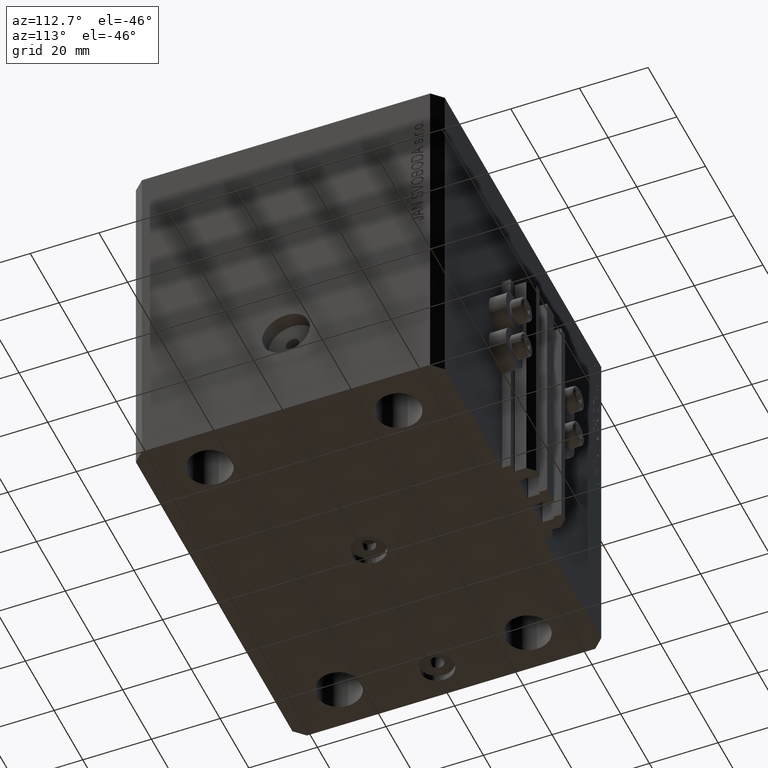
[diagram: clean part render]
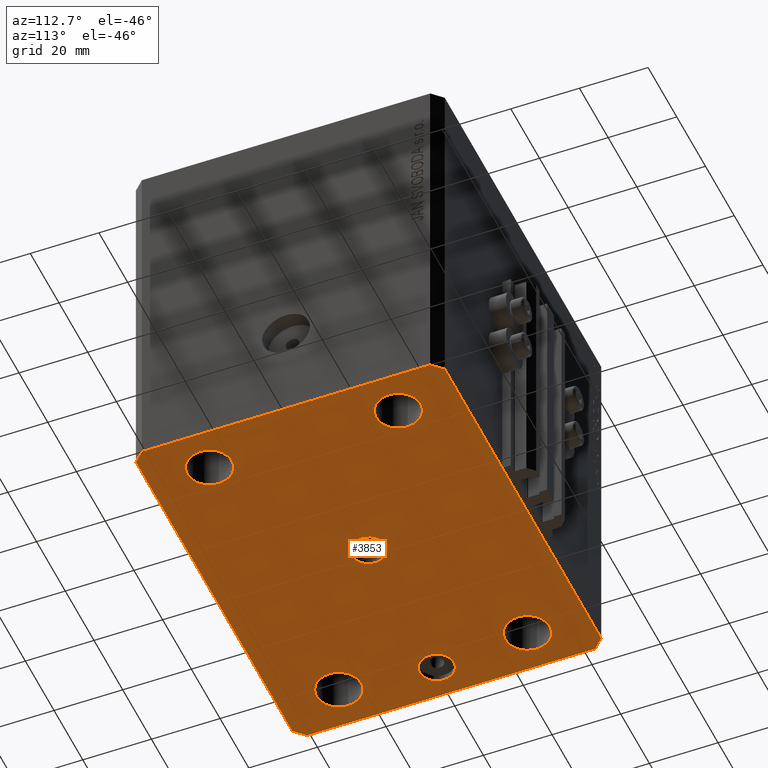
[diagram: same view with one face highlighted and labeled with its STEP entity id]
A machine part, auxiliary view. The second image highlights one B-rep face of the part: STEP entity #3853.
In plain terms, the highlighted planar face has unit normal (0, 0, 1).
Its self-contained STEP definition (entity closure, byte-faithful):
#52 = EDGE_CURVE ( 'NONE', #39049, #38911, #45663, .T. ) ;
#116 = CARTESIAN_POINT ( 'NONE',  ( -51.49999999999998579, -27.50000000000000355, -105.0000000000000000 ) ) ;
#283 = DIRECTION ( 'NONE',  ( -0.000000000000000000, -0.000000000000000000, -1.000000000000000000 ) ) ;
#383 = CARTESIAN_POINT ( 'NONE',  ( 38.50000000000000000, 27.49999999999999289, -105.0000000000000000 ) ) ;
#556 = AXIS2_PLACEMENT_3D ( 'NONE', #14667, #14897, #4152 ) ;
#993 = CARTESIAN_POINT ( 'NONE',  ( 44.99999999999998579, -27.50000000000000355, -105.0000000000000000 ) ) ;
#1139 = EDGE_LOOP ( 'NONE', ( #31312, #21358 ) ) ;
#1327 = CARTESIAN_POINT ( 'NONE',  ( 54.50000000000059686, 45.00000000000002842, -105.0000000000000000 ) ) ;
#1668 = ORIENTED_EDGE ( 'NONE', *, *, #37815, .F. ) ;
#2010 = CIRCLE ( 'NONE', #30298, 5.000000000000000000 ) ;
#2219 = DIRECTION ( 'NONE',  ( -0.000000000000000000, -0.000000000000000000, -1.000000000000000000 ) ) ;
#2945 = CARTESIAN_POINT ( 'NONE',  ( 51.49999999999998579, -27.50000000000000355, -105.0000000000000000 ) ) ;
#3059 = DIRECTION ( 'NONE',  ( 1.000000000000000000, 0.000000000000000000, -0.000000000000000000 ) ) ;
#3290 = FACE_BOUND ( 'NONE', #27787, .T. ) ;
#3508 = VERTEX_POINT ( 'NONE', #33984 ) ;
#3555 = DIRECTION ( 'NONE',  ( -0.7071067811865483499, -0.7071067811865466846, 0.000000000000000000 ) ) ;
#3853 = ADVANCED_FACE ( 'NONE', ( #27725, #38942, #10454, #17866, #46620, #3290, #17398 ), #6161, .F. ) ;
#4152 = DIRECTION ( 'NONE',  ( -1.000000000000000000, 0.000000000000000000, 0.000000000000000000 ) ) ;
#5781 = EDGE_LOOP ( 'NONE', ( #45998, #27158 ) ) ;
#6027 = CARTESIAN_POINT ( 'NONE',  ( -38.50000000000000000, 27.49999999999999645, -105.0000000000000000 ) ) ;
#6089 = CARTESIAN_POINT ( 'NONE',  ( 57.50000000000055422, 41.99999999999997868, -105.0000000000000000 ) ) ;
#6161 = PLANE ( 'NONE',  #17486 ) ;
#6390 = DIRECTION ( 'NONE',  ( 1.000000000000000000, 0.000000000000000000, 0.000000000000000000 ) ) ;
#6597 = ORIENTED_EDGE ( 'NONE', *, *, #23996, .F. ) ;
#6711 = CARTESIAN_POINT ( 'NONE',  ( 0.000000000000000000, 0.000000000000000000, -105.0000000000000000 ) ) ;
#7148 = VERTEX_POINT ( 'NONE', #12737 ) ;
#7308 = VECTOR ( 'NONE', #11576, 1000.000000000000000 ) ;
#7412 = VERTEX_POINT ( 'NONE', #38486 ) ;
#7565 = LINE ( 'NONE', #1327, #43666 ) ;
#7820 = VERTEX_POINT ( 'NONE', #23132 ) ;
#8344 = ORIENTED_EDGE ( 'NONE', *, *, #8880, .F. ) ;
#8439 = DIRECTION ( 'NONE',  ( 0.7071067811865491270, -0.7071067811865459074, 0.000000000000000000 ) ) ;
#8880 = EDGE_CURVE ( 'NONE', #17401, #27056, #32156, .T. ) ;
#8976 = VERTEX_POINT ( 'NONE', #2945 ) ;
#9095 = DIRECTION ( 'NONE',  ( -2.478176394252581141E-16, -1.000000000000000000, 0.000000000000000000 ) ) ;
#9149 = ORIENTED_EDGE ( 'NONE', *, *, #27474, .F. ) ;
#9860 = CARTESIAN_POINT ( 'NONE',  ( 51.50000000000000000, 27.49999999999999289, -105.0000000000000000 ) ) ;
#9869 = CIRCLE ( 'NONE', #17524, 6.499999999999999112 ) ;
#9989 = EDGE_CURVE ( 'NONE', #3508, #47092, #25326, .T. ) ;
#10454 = FACE_BOUND ( 'NONE', #21536, .T. ) ;
#10743 = AXIS2_PLACEMENT_3D ( 'NONE', #28563, #2219, #13689 ) ;
#11299 = CARTESIAN_POINT ( 'NONE',  ( -51.50000000000000000, 27.49999999999999645, -105.0000000000000000 ) ) ;
#11427 = VERTEX_POINT ( 'NONE', #29972 ) ;
#11576 = DIRECTION ( 'NONE',  ( 6.443258625056715108E-15, 1.000000000000000000, 0.000000000000000000 ) ) ;
#11955 = CARTESIAN_POINT ( 'NONE',  ( -54.50000000000000711, -45.00000000000000000, -105.0000000000000000 ) ) ;
#11957 = EDGE_LOOP ( 'NONE', ( #14057, #15868 ) ) ;
#12657 = EDGE_LOOP ( 'NONE', ( #15264, #28249 ) ) ;
#12737 = CARTESIAN_POINT ( 'NONE',  ( -38.49999999999998579, -27.50000000000000355, -105.0000000000000000 ) ) ;
#12816 = CARTESIAN_POINT ( 'NONE',  ( 54.50000000000000711, -44.99999999999998579, -105.0000000000000000 ) ) ;
#13038 = DIRECTION ( 'NONE',  ( -1.000000000000000000, -2.546383084002638829E-16, 0.000000000000000000 ) ) ;
#13689 = DIRECTION ( 'NONE',  ( 1.000000000000000000, 0.000000000000000000, 0.000000000000000000 ) ) ;
#13750 = VERTEX_POINT ( 'NONE', #39116 ) ;
#14057 = ORIENTED_EDGE ( 'NONE', *, *, #31774, .F. ) ;
#14123 = EDGE_CURVE ( 'NONE', #43360, #7820, #7565, .T. ) ;
#14154 = AXIS2_PLACEMENT_3D ( 'NONE', #32249, #28429, #6390 ) ;
#14667 = CARTESIAN_POINT ( 'NONE',  ( -47.50000000000000000, 0.000000000000000000, -105.0000000000000000 ) ) ;
#14879 = EDGE_CURVE ( 'NONE', #45555, #44160, #27637, .T. ) ;
#14897 = DIRECTION ( 'NONE',  ( 0.000000000000000000, 0.000000000000000000, -1.000000000000000000 ) ) ;
#15264 = ORIENTED_EDGE ( 'NONE', *, *, #38538, .F. ) ;
#15370 = CIRCLE ( 'NONE', #21541, 6.499999999999999112 ) ;
#15691 = DIRECTION ( 'NONE',  ( 0.7071067811865483499, 0.7071067811865466846, 0.000000000000000000 ) ) ;
#15729 = EDGE_CURVE ( 'NONE', #27056, #17401, #22282, .T. ) ;
#15854 = AXIS2_PLACEMENT_3D ( 'NONE', #43160, #32162, #20907 ) ;
#15868 = ORIENTED_EDGE ( 'NONE', *, *, #9989, .F. ) ;
#16734 = ORIENTED_EDGE ( 'NONE', *, *, #41529, .F. ) ;
#16751 = DIRECTION ( 'NONE',  ( 0.000000000000000000, 0.000000000000000000, -1.000000000000000000 ) ) ;
#17090 = DIRECTION ( 'NONE',  ( -0.7071067811865369146, 0.7071067811865581199, 0.000000000000000000 ) ) ;
#17398 = FACE_OUTER_BOUND ( 'NONE', #32961, .T. ) ;
#17401 = VERTEX_POINT ( 'NONE', #6027 ) ;
#17486 = AXIS2_PLACEMENT_3D ( 'NONE', #31542, #21470, #3059 ) ;
#17524 = AXIS2_PLACEMENT_3D ( 'NONE', #40715, #283, #18453 ) ;
#17802 = CARTESIAN_POINT ( 'NONE',  ( 54.50000000000000711, -44.99999999999998579, -105.0000000000000000 ) ) ;
#17866 = FACE_BOUND ( 'NONE', #5781, .T. ) ;
#17949 = EDGE_CURVE ( 'NONE', #7820, #13750, #39935, .T. ) ;
#17977 = VECTOR ( 'NONE', #17090, 1000.000000000000000 ) ;
#18453 = DIRECTION ( 'NONE',  ( 1.000000000000000000, 0.000000000000000000, 0.000000000000000000 ) ) ;
#18488 = VERTEX_POINT ( 'NONE', #6089 ) ;
#19877 = DIRECTION ( 'NONE',  ( -0.000000000000000000, -0.000000000000000000, -1.000000000000000000 ) ) ;
#20227 = VERTEX_POINT ( 'NONE', #27576 ) ;
#20317 = CARTESIAN_POINT ( 'NONE',  ( 54.50000000000059686, 45.00000000000002842, -105.0000000000000000 ) ) ;
#20629 = ORIENTED_EDGE ( 'NONE', *, *, #30260, .F. ) ;
#20907 = DIRECTION ( 'NONE',  ( -1.000000000000000000, 0.000000000000000000, 0.000000000000000000 ) ) ;
#21358 = ORIENTED_EDGE ( 'NONE', *, *, #52, .F. ) ;
#21470 = DIRECTION ( 'NONE',  ( 0.000000000000000000, 0.000000000000000000, 1.000000000000000000 ) ) ;
#21536 = EDGE_LOOP ( 'NONE', ( #6597, #16734 ) ) ;
#21541 = AXIS2_PLACEMENT_3D ( 'NONE', #35621, #27994, #42564 ) ;
#21752 = CARTESIAN_POINT ( 'NONE',  ( -54.49999999999999289, 45.00000000000000000, -105.0000000000000000 ) ) ;
#21772 = VERTEX_POINT ( 'NONE', #32476 ) ;
#21873 = VECTOR ( 'NONE', #41173, 1000.000000000000000 ) ;
#22282 = CIRCLE ( 'NONE', #39095, 6.499999999999999112 ) ;
#23132 = CARTESIAN_POINT ( 'NONE',  ( -54.49999999999999289, 45.00000000000000000, -105.0000000000000000 ) ) ;
#23505 = AXIS2_PLACEMENT_3D ( 'NONE', #40804, #46912, #25995 ) ;
#23996 = EDGE_CURVE ( 'NONE', #7148, #43032, #35584, .T. ) ;
#24307 = EDGE_CURVE ( 'NONE', #18488, #43360, #35280, .T. ) ;
#24357 = ORIENTED_EDGE ( 'NONE', *, *, #14123, .F. ) ;
#24573 = DIRECTION ( 'NONE',  ( 1.000000000000000000, 0.000000000000000000, 0.000000000000000000 ) ) ;
#25326 = CIRCLE ( 'NONE', #40551, 5.000000000000000000 ) ;
#25995 = DIRECTION ( 'NONE',  ( 1.000000000000000000, 0.000000000000000000, 0.000000000000000000 ) ) ;
#26034 = EDGE_CURVE ( 'NONE', #11427, #18488, #29108, .T. ) ;
#26331 = CARTESIAN_POINT ( 'NONE',  ( -52.50000000000000000, 0.000000000000000000, -105.0000000000000000 ) ) ;
#27056 = VERTEX_POINT ( 'NONE', #11299 ) ;
#27158 = ORIENTED_EDGE ( 'NONE', *, *, #34304, .F. ) ;
#27306 = ORIENTED_EDGE ( 'NONE', *, *, #17949, .F. ) ;
#27474 = EDGE_CURVE ( 'NONE', #7412, #34543, #44758, .T. ) ;
#27576 = CARTESIAN_POINT ( 'NONE',  ( 38.49999999999998579, -27.50000000000000355, -105.0000000000000000 ) ) ;
#27637 = CIRCLE ( 'NONE', #33719, 6.499999999999999112 ) ;
#27725 = FACE_BOUND ( 'NONE', #11957, .T. ) ;
#27787 = EDGE_LOOP ( 'NONE', ( #8344, #34819 ) ) ;
#27994 = DIRECTION ( 'NONE',  ( -0.000000000000000000, -0.000000000000000000, -1.000000000000000000 ) ) ;
#28116 = CIRCLE ( 'NONE', #23505, 6.499999999999999112 ) ;
#28125 = ORIENTED_EDGE ( 'NONE', *, *, #24307, .F. ) ;
#28249 = ORIENTED_EDGE ( 'NONE', *, *, #14879, .F. ) ;
#28274 = CARTESIAN_POINT ( 'NONE',  ( -57.49999999999998579, 42.00000000000000711, -105.0000000000000000 ) ) ;
#28286 = DIRECTION ( 'NONE',  ( -1.000000000000000000, 0.000000000000000000, 0.000000000000000000 ) ) ;
#28400 = CARTESIAN_POINT ( 'NONE',  ( 45.00000000000000000, 27.49999999999999289, -105.0000000000000000 ) ) ;
#28429 = DIRECTION ( 'NONE',  ( -0.000000000000000000, -0.000000000000000000, -1.000000000000000000 ) ) ;
#28563 = CARTESIAN_POINT ( 'NONE',  ( -45.00000000000000000, 27.49999999999999645, -105.0000000000000000 ) ) ;
#28607 = CARTESIAN_POINT ( 'NONE',  ( 57.50000000000055422, 41.99999999999997868, -105.0000000000000000 ) ) ;
#29089 = DIRECTION ( 'NONE',  ( -0.000000000000000000, -0.000000000000000000, -1.000000000000000000 ) ) ;
#29108 = LINE ( 'NONE', #47291, #7308 ) ;
#29972 = CARTESIAN_POINT ( 'NONE',  ( 57.50000000000000711, -41.99999999999998579, -105.0000000000000000 ) ) ;
#30260 = EDGE_CURVE ( 'NONE', #13750, #21772, #41883, .T. ) ;
#30298 = AXIS2_PLACEMENT_3D ( 'NONE', #32672, #46809, #42973 ) ;
#31312 = ORIENTED_EDGE ( 'NONE', *, *, #38477, .F. ) ;
#31332 = CARTESIAN_POINT ( 'NONE',  ( -45.00000000000000000, 27.49999999999999645, -105.0000000000000000 ) ) ;
#31542 = CARTESIAN_POINT ( 'NONE',  ( 0.000000000000000000, 0.000000000000000000, -105.0000000000000000 ) ) ;
#31774 = EDGE_CURVE ( 'NONE', #47092, #3508, #2010, .T. ) ;
#32059 = DIRECTION ( 'NONE',  ( 1.000000000000000000, 0.000000000000000000, 0.000000000000000000 ) ) ;
#32156 = CIRCLE ( 'NONE', #10743, 6.499999999999999112 ) ;
#32162 = DIRECTION ( 'NONE',  ( 0.000000000000000000, 0.000000000000000000, -1.000000000000000000 ) ) ;
#32249 = CARTESIAN_POINT ( 'NONE',  ( -44.99999999999998579, -27.50000000000000355, -105.0000000000000000 ) ) ;
#32476 = CARTESIAN_POINT ( 'NONE',  ( -57.50000000000000711, -42.00000000000000711, -105.0000000000000000 ) ) ;
#32672 = CARTESIAN_POINT ( 'NONE',  ( 0.000000000000000000, 0.000000000000000000, -105.0000000000000000 ) ) ;
#32710 = LINE ( 'NONE', #41233, #35851 ) ;
#32961 = EDGE_LOOP ( 'NONE', ( #24357, #28125, #38811, #38412, #9149, #1668, #20629, #27306 ) ) ;
#33719 = AXIS2_PLACEMENT_3D ( 'NONE', #28400, #29089, #24573 ) ;
#33825 = VECTOR ( 'NONE', #3555, 1000.000000000000000 ) ;
#33984 = CARTESIAN_POINT ( 'NONE',  ( 5.000000000000000000, 6.123233995736765296E-16, -105.0000000000000000 ) ) ;
#34081 = VECTOR ( 'NONE', #9095, 1000.000000000000000 ) ;
#34130 = LINE ( 'NONE', #12816, #46790 ) ;
#34304 = EDGE_CURVE ( 'NONE', #20227, #8976, #28116, .T. ) ;
#34477 = DIRECTION ( 'NONE',  ( 1.000000000000000000, 0.000000000000000000, 0.000000000000000000 ) ) ;
#34543 = VERTEX_POINT ( 'NONE', #17802 ) ;
#34819 = ORIENTED_EDGE ( 'NONE', *, *, #15729, .F. ) ;
#35079 = CIRCLE ( 'NONE', #15854, 4.999999999999997335 ) ;
#35280 = LINE ( 'NONE', #28607, #17977 ) ;
#35584 = CIRCLE ( 'NONE', #14154, 6.499999999999999112 ) ;
#35621 = CARTESIAN_POINT ( 'NONE',  ( -44.99999999999998579, -27.50000000000000355, -105.0000000000000000 ) ) ;
#35851 = VECTOR ( 'NONE', #8439, 1000.000000000000114 ) ;
#36548 = CARTESIAN_POINT ( 'NONE',  ( -42.50000000000000000, 6.123233995736762338E-16, -105.0000000000000000 ) ) ;
#37815 = EDGE_CURVE ( 'NONE', #21772, #7412, #32710, .T. ) ;
#38412 = ORIENTED_EDGE ( 'NONE', *, *, #42756, .F. ) ;
#38477 = EDGE_CURVE ( 'NONE', #38911, #39049, #35079, .T. ) ;
#38486 = CARTESIAN_POINT ( 'NONE',  ( -54.50000000000000711, -45.00000000000000000, -105.0000000000000000 ) ) ;
#38538 = EDGE_CURVE ( 'NONE', #44160, #45555, #9869, .T. ) ;
#38745 = EDGE_CURVE ( 'NONE', #8976, #20227, #47323, .T. ) ;
#38811 = ORIENTED_EDGE ( 'NONE', *, *, #26034, .F. ) ;
#38911 = VERTEX_POINT ( 'NONE', #26331 ) ;
#38942 = FACE_BOUND ( 'NONE', #1139, .T. ) ;
#38974 = DIRECTION ( 'NONE',  ( -0.000000000000000000, -0.000000000000000000, -1.000000000000000000 ) ) ;
#39049 = VERTEX_POINT ( 'NONE', #36548 ) ;
#39095 = AXIS2_PLACEMENT_3D ( 'NONE', #31332, #38974, #32059 ) ;
#39116 = CARTESIAN_POINT ( 'NONE',  ( -57.49999999999998579, 42.00000000000000711, -105.0000000000000000 ) ) ;
#39935 = LINE ( 'NONE', #21752, #33825 ) ;
#40435 = AXIS2_PLACEMENT_3D ( 'NONE', #993, #19877, #34477 ) ;
#40551 = AXIS2_PLACEMENT_3D ( 'NONE', #6711, #16751, #28286 ) ;
#40715 = CARTESIAN_POINT ( 'NONE',  ( 45.00000000000000000, 27.49999999999999289, -105.0000000000000000 ) ) ;
#40804 = CARTESIAN_POINT ( 'NONE',  ( 44.99999999999998579, -27.50000000000000355, -105.0000000000000000 ) ) ;
#41173 = DIRECTION ( 'NONE',  ( 1.000000000000000000, 1.273191542001326317E-16, 0.000000000000000000 ) ) ;
#41233 = CARTESIAN_POINT ( 'NONE',  ( -57.50000000000000711, -42.00000000000000711, -105.0000000000000000 ) ) ;
#41529 = EDGE_CURVE ( 'NONE', #43032, #7148, #15370, .T. ) ;
#41883 = LINE ( 'NONE', #28274, #34081 ) ;
#42564 = DIRECTION ( 'NONE',  ( 1.000000000000000000, 0.000000000000000000, 0.000000000000000000 ) ) ;
#42756 = EDGE_CURVE ( 'NONE', #34543, #11427, #34130, .T. ) ;
#42973 = DIRECTION ( 'NONE',  ( -1.000000000000000000, 0.000000000000000000, 0.000000000000000000 ) ) ;
#43032 = VERTEX_POINT ( 'NONE', #116 ) ;
#43050 = CARTESIAN_POINT ( 'NONE',  ( -5.000000000000000000, 0.000000000000000000, -105.0000000000000000 ) ) ;
#43160 = CARTESIAN_POINT ( 'NONE',  ( -47.50000000000000000, 0.000000000000000000, -105.0000000000000000 ) ) ;
#43360 = VERTEX_POINT ( 'NONE', #20317 ) ;
#43666 = VECTOR ( 'NONE', #13038, 1000.000000000000000 ) ;
#44160 = VERTEX_POINT ( 'NONE', #9860 ) ;
#44758 = LINE ( 'NONE', #11955, #21873 ) ;
#45555 = VERTEX_POINT ( 'NONE', #383 ) ;
#45663 = CIRCLE ( 'NONE', #556, 4.999999999999997335 ) ;
#45998 = ORIENTED_EDGE ( 'NONE', *, *, #38745, .F. ) ;
#46620 = FACE_BOUND ( 'NONE', #12657, .T. ) ;
#46790 = VECTOR ( 'NONE', #15691, 1000.000000000000000 ) ;
#46809 = DIRECTION ( 'NONE',  ( 0.000000000000000000, 0.000000000000000000, -1.000000000000000000 ) ) ;
#46912 = DIRECTION ( 'NONE',  ( -0.000000000000000000, -0.000000000000000000, -1.000000000000000000 ) ) ;
#47092 = VERTEX_POINT ( 'NONE', #43050 ) ;
#47291 = CARTESIAN_POINT ( 'NONE',  ( 57.50000000000000711, -41.99999999999998579, -105.0000000000000000 ) ) ;
#47323 = CIRCLE ( 'NONE', #40435, 6.499999999999999112 ) ;